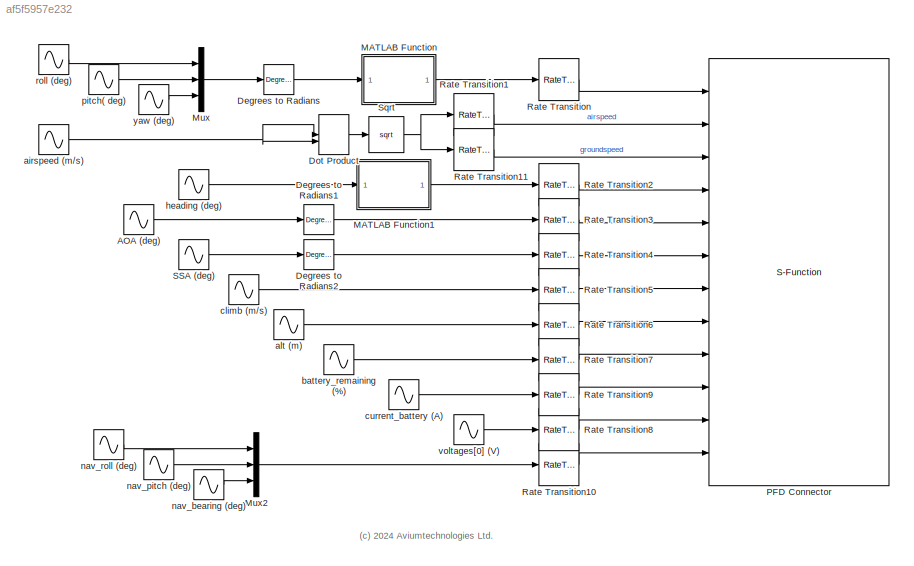
MODEL slx_af5f5957e232
KIND model
CONFIG AbsTol = auto
CONFIG EnableMultiTasking = off
CONFIG FixedStep = 0.03
CONFIG MaxStep = auto
CONFIG MinStep = auto
CONFIG RelTol = 1e-3
CONFIG SampleTimeConstraint = Unconstrained
CONFIG SolverName = ode4
CONFIG StartTime = 0.0
CONFIG StopTime = 60
BLOCK [Sin] AOA (deg)
  Amplitude = 5
  Ports = [0, 1]
  SampleTime = 0
BLOCK [Reference] Degrees to Radians  REF=simulink_extras/Transformations/Degrees to
Radians
  Ports = [1, 1]
  SourceBlock = simulink_extras/Transformations/Degrees to\nRadians
  SourceProductBaseCode = SL
  SourceType = DegreesToRadians
BLOCK [Reference] Degrees to Radians1  REF=simulink_extras/Transformations/Degrees to
Radians
  Ports = [1, 1]
  SourceBlock = simulink_extras/Transformations/Degrees to\nRadians
  SourceProductBaseCode = SL
  SourceType = DegreesToRadians
BLOCK [Reference] Degrees to Radians2  REF=simulink_extras/Transformations/Degrees to
Radians
  Ports = [1, 1]
  SourceBlock = simulink_extras/Transformations/Degrees to\nRadians
  SourceProductBaseCode = SL
  SourceType = DegreesToRadians
BLOCK [DotProduct] Dot Product
  OutDataTypeStr = Inherit: Inherit via internal rule
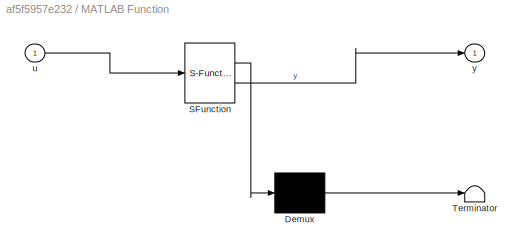
BLOCK [SubSystem] MATLAB Function
  ErrorFcn = Stateflow.Translate.translate
  PermitHierarchicalResolution = ExplicitOnly
  Ports = [1, 1]
  RequestExecContextInheritance = off
  SFBlockType = MATLAB Function
  TreatAsAtomicUnit = on
BLOCK [Demux] MATLAB Function/ Demux 
  Outputs = 1
  Ports = [1, 1]
BLOCK [S-Function] MATLAB Function/ SFunction 
  EnableBusSupport = on
  FunctionName = sf_sfun
  PortCounts = [1 2]
  Ports = [1, 2]
  SFcnIsStateOwnerBlock = off
  SFunctionDeploymentMode = off
  Tag = Stateflow S-Function 2
BLOCK [Terminator] MATLAB Function/ Terminator 
BLOCK [Inport] MATLAB Function/u
BLOCK [Outport] MATLAB Function/y
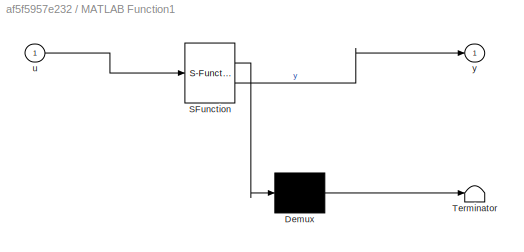
BLOCK [SubSystem] MATLAB Function1
  ErrorFcn = Stateflow.Translate.translate
  PermitHierarchicalResolution = ExplicitOnly
  Ports = [1, 1]
  RequestExecContextInheritance = off
  SFBlockType = MATLAB Function
  TreatAsAtomicUnit = on
BLOCK [Demux] MATLAB Function1/ Demux 
  Outputs = 1
  Ports = [1, 1]
BLOCK [S-Function] MATLAB Function1/ SFunction 
  EnableBusSupport = on
  FunctionName = sf_sfun
  PortCounts = [1 2]
  Ports = [1, 2]
  SFcnIsStateOwnerBlock = off
  SFunctionDeploymentMode = off
  Tag = Stateflow S-Function 1
BLOCK [Terminator] MATLAB Function1/ Terminator 
BLOCK [Inport] MATLAB Function1/u
BLOCK [Outport] MATLAB Function1/y
BLOCK [Mux] Mux
  DisplayOption = bar
  Inputs = 3
  Ports = [3, 1]
BLOCK [Mux] Mux2
  DisplayOption = bar
  Inputs = 3
  Ports = [3, 1]
BLOCK [S-Function] PFD Connector
  EnableBusSupport = off
  FunctionName = pfd_connector
  Ports = [12]
  SFcnIsStateOwnerBlock = off
  SFunctionDeploymentMode = off
BLOCK [RateTransition] Rate Transition
  OutPortSampleTime = 0.03
BLOCK [RateTransition] Rate Transition1
  OutPortSampleTime = 0.03
BLOCK [RateTransition] Rate Transition10
  OutPortSampleTime = 0.03
BLOCK [RateTransition] Rate Transition11
  OutPortSampleTime = 0.03
BLOCK [RateTransition] Rate Transition2
  OutPortSampleTime = 0.03
BLOCK [RateTransition] Rate Transition3
  OutPortSampleTime = 0.03
BLOCK [RateTransition] Rate Transition4
  OutPortSampleTime = 0.03
BLOCK [RateTransition] Rate Transition5
  OutPortSampleTime = 0.03
BLOCK [RateTransition] Rate Transition6
  OutPortSampleTime = 0.03
BLOCK [RateTransition] Rate Transition7
  OutPortSampleTime = 0.03
BLOCK [RateTransition] Rate Transition8
  OutPortSampleTime = 0.03
BLOCK [RateTransition] Rate Transition9
  OutPortSampleTime = 0.03
BLOCK [Sin] SSA (deg)
  Amplitude = 3
  Ports = [0, 1]
  SampleTime = 0
BLOCK [Sqrt] Sqrt
BLOCK [Sin] airspeed (m//s)
  Amplitude = [2 0 0]
  Bias = [25 0 0]
  Ports = [0, 1]
  SampleTime = 0
BLOCK [Sin] alt (m)
  Amplitude = 10
  Bias = 1000
  Ports = [0, 1]
  SampleTime = 0
BLOCK [Sin] battery_remaining (%)
  Amplitude = 20
  Bias = 80
  Ports = [0, 1]
  SampleTime = 0
BLOCK [Sin] climb (m//s)
  Amplitude = 5
  Ports = [0, 1]
  SampleTime = 0
BLOCK [Sin] current_battery (A)
  Amplitude = 5
  Bias = 30
  Ports = [0, 1]
  SampleTime = 0
BLOCK [Sin] heading (deg)
  Amplitude = 175
  Bias = -135
  Frequency = 0.5
  Ports = [0, 1]
  SampleTime = 0
BLOCK [Sin] nav_bearing (deg)
  Bias = -135
  Ports = [0, 1]
  SampleTime = 0
BLOCK [Sin] nav_pitch (deg)
  Bias = 5
  Ports = [0, 1]
  SampleTime = 0
BLOCK [Sin] nav_roll (deg)
  Bias = 30
  Ports = [0, 1]
  SampleTime = 0
BLOCK [Sin] pitch( deg)
  Amplitude = 10
  Ports = [0, 1]
  SampleTime = 0
BLOCK [Sin] roll (deg)
  Amplitude = 10
  Ports = [0, 1]
  SampleTime = 0
BLOCK [Sin] voltages[0] (V)
  Amplitude = 0.2
  Bias = 22.2
  Ports = [0, 1]
  SampleTime = 0
BLOCK [Sin] yaw (deg)
  Amplitude = 180
  Bias = -135
  Frequency = 0.5
  Ports = [0, 1]
  SampleTime = 0
ANNOTATION (root): (c) 2024 Aviumtechnologies Ltd.
LINE AOA (deg):1 -> Degrees to Radians1:1
LINE Degrees to Radians1:1 -> Rate Transition3:1
LINE Degrees to Radians2:1 -> Rate Transition4:1
LINE Degrees to Radians:1 -> MATLAB Function:1
LINE Dot Product:1 -> Sqrt:1
LINE MATLAB Function1:1 -> Rate Transition2:1
LINE MATLAB Function:1 -> Rate Transition:1
LINE Mux2:1 -> Rate Transition10:1
LINE Mux:1 -> Degrees to Radians:1
LINE Rate Transition10:1 -> PFD Connector:12
LINE Rate Transition11:1 -> PFD Connector:3
LINE Rate Transition1:1 -> PFD Connector:2
LINE Rate Transition2:1 -> PFD Connector:4
LINE Rate Transition3:1 -> PFD Connector:5
LINE Rate Transition4:1 -> PFD Connector:6
LINE Rate Transition5:1 -> PFD Connector:7
LINE Rate Transition6:1 -> PFD Connector:8
LINE Rate Transition7:1 -> PFD Connector:9
LINE Rate Transition8:1 -> PFD Connector:11
LINE Rate Transition9:1 -> PFD Connector:10
LINE Rate Transition:1 -> PFD Connector:1
LINE SSA (deg):1 -> Degrees to Radians2:1
NET Sqrt:1 -> Rate Transition11:1, Rate Transition1:1
NET airspeed (m//s):1 -> Dot Product:1, Dot Product:2
LINE alt (m):1 -> Rate Transition6:1
LINE battery_remaining (%):1 -> Rate Transition7:1
LINE climb (m//s):1 -> Rate Transition5:1
LINE current_battery (A):1 -> Rate Transition9:1
LINE heading (deg):1 -> MATLAB Function1:1
LINE nav_bearing (deg):1 -> Mux2:3
LINE nav_pitch (deg):1 -> Mux2:2
LINE nav_roll (deg):1 -> Mux2:1
LINE pitch( deg):1 -> Mux:2
LINE roll (deg):1 -> Mux:1
LINE voltages[0] (V):1 -> Rate Transition8:1
LINE yaw (deg):1 -> Mux:3
note: NET lines group one-source signal fan-out (src -> all destinations, sorted); 1:1 wires keep LINE
CHART MATLAB Function states=1 transitions=1
  STATE_LABEL 'eML_blk_kernel()'
  STATE_LABEL 'SCRIPT:\nfunction y = wrap_pi(u)\n    \ny=zeros(size(u));\nfor i=1:size(u,1)\n \n    min=-pi;\n    max=pi;\n\n    if min <= u(i) && u(i) < max\n        y(i)=u(i);\n    else\n        range=max-min;\n        wraps=floor((u(i)-min)/range);\n        y(i)=u(i)-range*wraps;\n    end\nend'
CHART MATLAB Function1 states=1 transitions=1
  STATE_LABEL 'eML_blk_kernel()'
  STATE_LABEL 'SCRIPT:\nfunction y = wrap_pi(u)\n    \ny=zeros(size(u));\nfor i=1:size(u,1)\n \n    min=0;\n    max=360;\n\n    if min <= u(i) && u(i) < max\n        y(i)=u(i);\n    else\n        range=max-min;\n        wraps=floor((u(i)-min)/range);\n        y(i)=u(i)-range*wraps;\n    end\nend'
CHART  states=0 transitions=0
CHART  states=0 transitions=0
